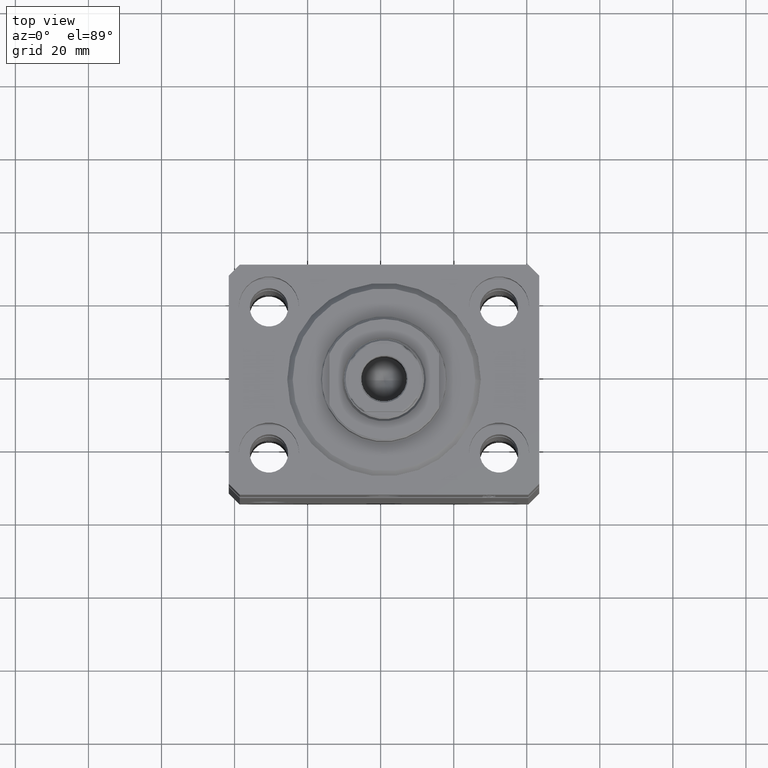
[diagram: clean part render]
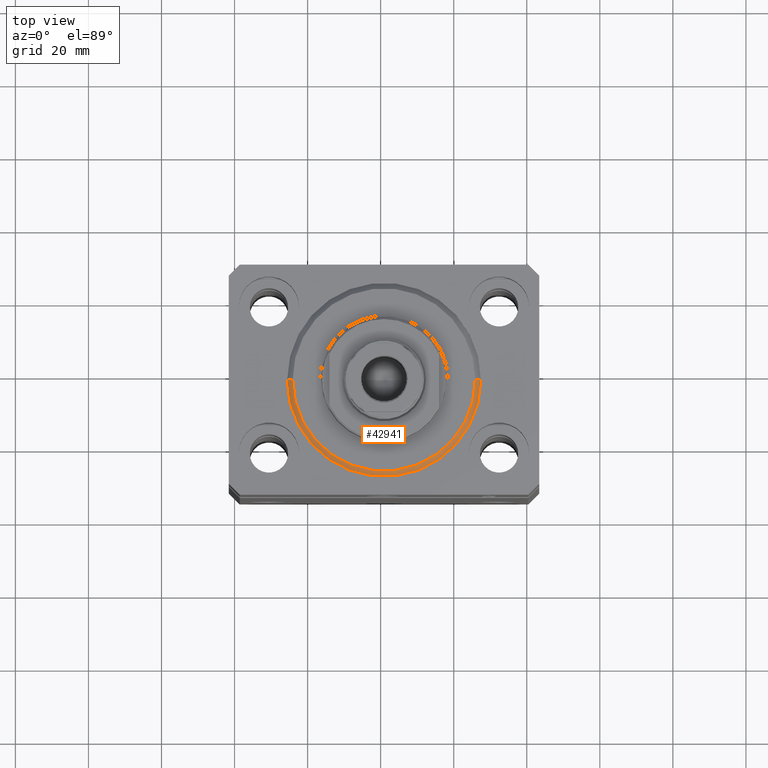
[diagram: same view with one face highlighted and labeled with its STEP entity id]
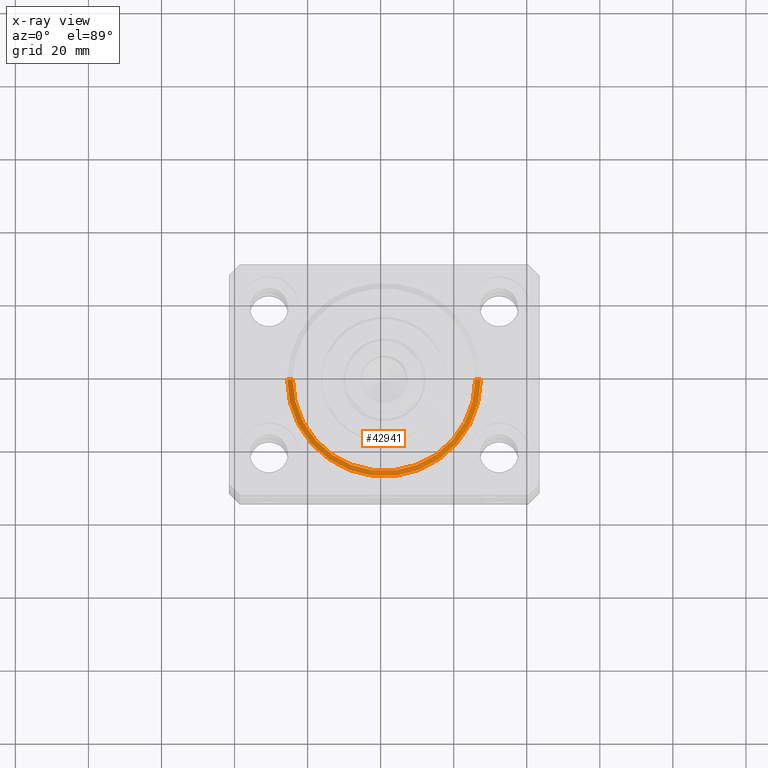
[diagram: x-ray of the same camera — body ghosted, the highlighted face saturated]
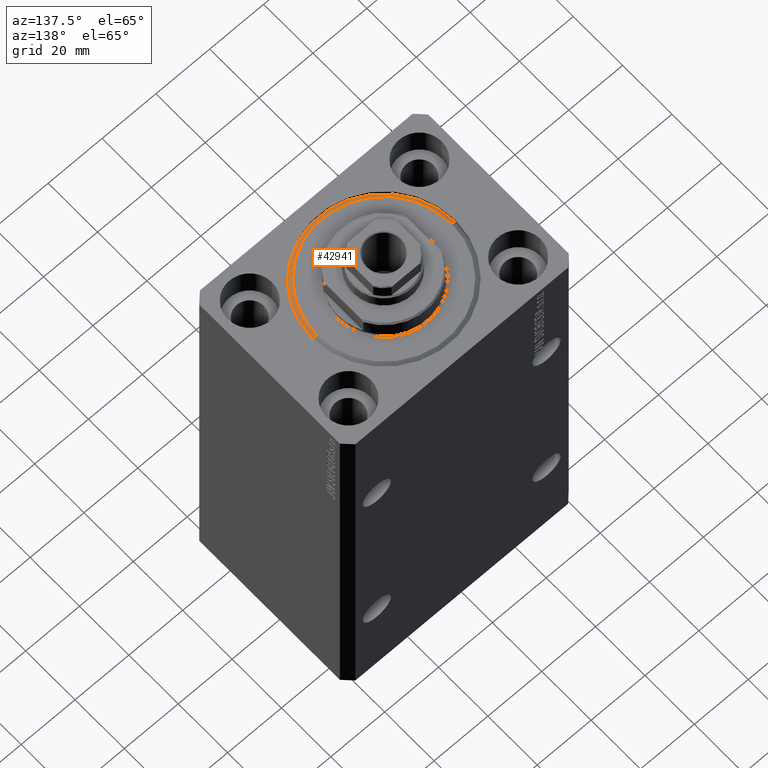
[diagram: same view with one face highlighted and labeled with its STEP entity id]
A machine part, top view. The second image highlights one B-rep face of the part: STEP entity #42941.
The next image is the same camera in x-ray: the body ghosted, the highlighted face saturated — about 0% of this face is hidden behind the body in this view.
A second angle (auxiliary view) of the same face is appended — the face is thin or edge-on in the first view.
In plain terms, the highlighted conical surface has half-angle 45 deg.
Its self-contained STEP definition (entity closure, byte-faithful):
#392 = CARTESIAN_POINT ( 'NONE',  ( -24.99999999999998224, 3.153465507804433615E-15, 0.000000000000000000 ) ) ;
#1679 = LINE ( 'NONE', #29647, #26446 ) ;
#2216 = VERTEX_POINT ( 'NONE', #392 ) ;
#3173 = AXIS2_PLACEMENT_3D ( 'NONE', #25410, #18545, #32512 ) ;
#6928 = EDGE_LOOP ( 'NONE', ( #22332, #23790, #27607, #9144 ) ) ;
#8328 = EDGE_CURVE ( 'NONE', #2216, #20226, #1679, .T. ) ;
#8612 = CIRCLE ( 'NONE', #31311, 26.50000000000000355 ) ;
#8799 = DIRECTION ( 'NONE',  ( -0.7071067811865483499, 8.659560562354942719E-17, 0.7071067811865466846 ) ) ;
#9118 = EDGE_CURVE ( 'NONE', #34474, #12237, #34732, .T. ) ;
#9144 = ORIENTED_EDGE ( 'NONE', *, *, #32757, .F. ) ;
#9317 = CARTESIAN_POINT ( 'NONE',  ( 0.000000000000000000, 0.000000000000000000, 1.500000000000018652 ) ) ;
#12237 = VERTEX_POINT ( 'NONE', #43265 ) ;
#12303 = FACE_OUTER_BOUND ( 'NONE', #6928, .T. ) ;
#12983 = DIRECTION ( 'NONE',  ( 1.000000000000000000, 0.000000000000000000, 0.000000000000000000 ) ) ;
#13728 = EDGE_CURVE ( 'NONE', #34474, #2216, #35375, .T. ) ;
#15007 = DIRECTION ( 'NONE',  ( 0.7071067811865483499, 0.000000000000000000, 0.7071067811865466846 ) ) ;
#16857 = CONICAL_SURFACE ( 'NONE', #22714, 26.50000000000000355, 0.7853981633974495002 ) ;
#18545 = DIRECTION ( 'NONE',  ( -0.000000000000000000, -0.000000000000000000, -1.000000000000000000 ) ) ;
#20226 = VERTEX_POINT ( 'NONE', #36412 ) ;
#22332 = ORIENTED_EDGE ( 'NONE', *, *, #8328, .F. ) ;
#22714 = AXIS2_PLACEMENT_3D ( 'NONE', #9317, #23072, #12983 ) ;
#23072 = DIRECTION ( 'NONE',  ( -0.000000000000000000, -0.000000000000000000, 1.000000000000000000 ) ) ;
#23790 = ORIENTED_EDGE ( 'NONE', *, *, #13728, .F. ) ;
#24353 = CARTESIAN_POINT ( 'NONE',  ( 24.99999999999998224, 0.000000000000000000, 0.000000000000000000 ) ) ;
#24407 = CARTESIAN_POINT ( 'NONE',  ( 26.50000000000000355, 0.000000000000000000, 1.500000000000018652 ) ) ;
#25410 = CARTESIAN_POINT ( 'NONE',  ( 0.000000000000000000, 0.000000000000000000, 0.000000000000000000 ) ) ;
#26446 = VECTOR ( 'NONE', #8799, 1000.000000000000000 ) ;
#27607 = ORIENTED_EDGE ( 'NONE', *, *, #9118, .T. ) ;
#29647 = CARTESIAN_POINT ( 'NONE',  ( -26.50000000000000355, 3.245314017740486554E-15, 1.500000000000018652 ) ) ;
#29859 = DIRECTION ( 'NONE',  ( 1.000000000000000000, 0.000000000000000000, 0.000000000000000000 ) ) ;
#31311 = AXIS2_PLACEMENT_3D ( 'NONE', #36740, #33306, #29859 ) ;
#32512 = DIRECTION ( 'NONE',  ( 1.000000000000000000, 0.000000000000000000, 0.000000000000000000 ) ) ;
#32757 = EDGE_CURVE ( 'NONE', #20226, #12237, #8612, .T. ) ;
#33306 = DIRECTION ( 'NONE',  ( -0.000000000000000000, -0.000000000000000000, 1.000000000000000000 ) ) ;
#34474 = VERTEX_POINT ( 'NONE', #24353 ) ;
#34732 = LINE ( 'NONE', #24407, #44061 ) ;
#35375 = CIRCLE ( 'NONE', #3173, 24.99999999999998224 ) ;
#36412 = CARTESIAN_POINT ( 'NONE',  ( -26.50000000000000355, 0.000000000000000000, 1.500000000000018652 ) ) ;
#36740 = CARTESIAN_POINT ( 'NONE',  ( 0.000000000000000000, 0.000000000000000000, 1.500000000000018652 ) ) ;
#42941 = ADVANCED_FACE ( 'NONE', ( #12303 ), #16857, .T. ) ;
#43265 = CARTESIAN_POINT ( 'NONE',  ( 26.50000000000000355, 3.245314017740486554E-15, 1.500000000000018652 ) ) ;
#44061 = VECTOR ( 'NONE', #15007, 1000.000000000000000 ) ;